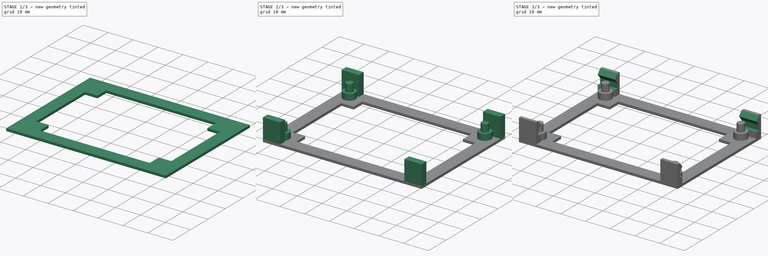
[diagram: build sequence overview — one tinted view per stage of 3, left to right]
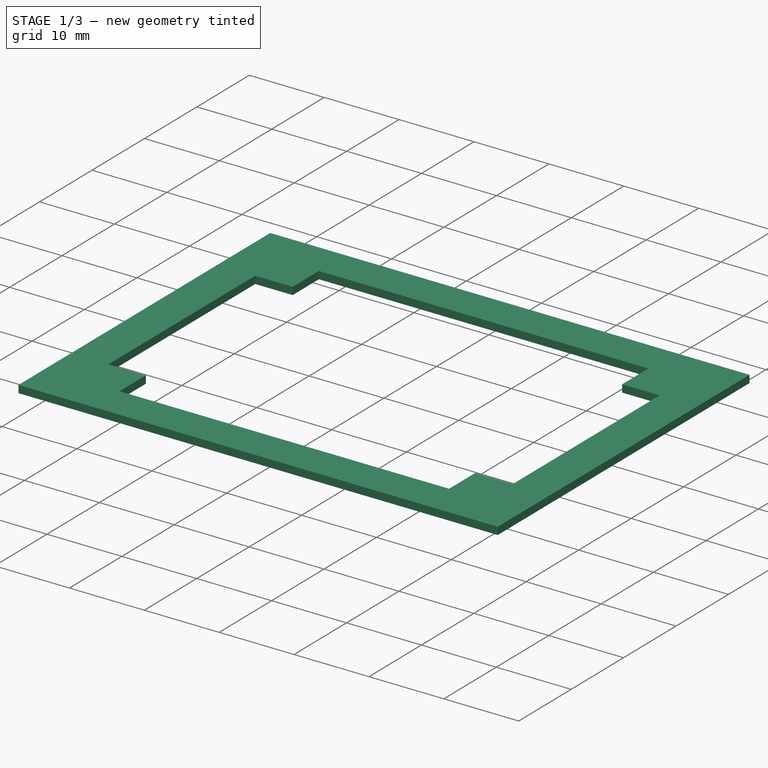
[diagram: stage 1 of 3 — iso view after this stage's code; geometry added in this stage tinted green]
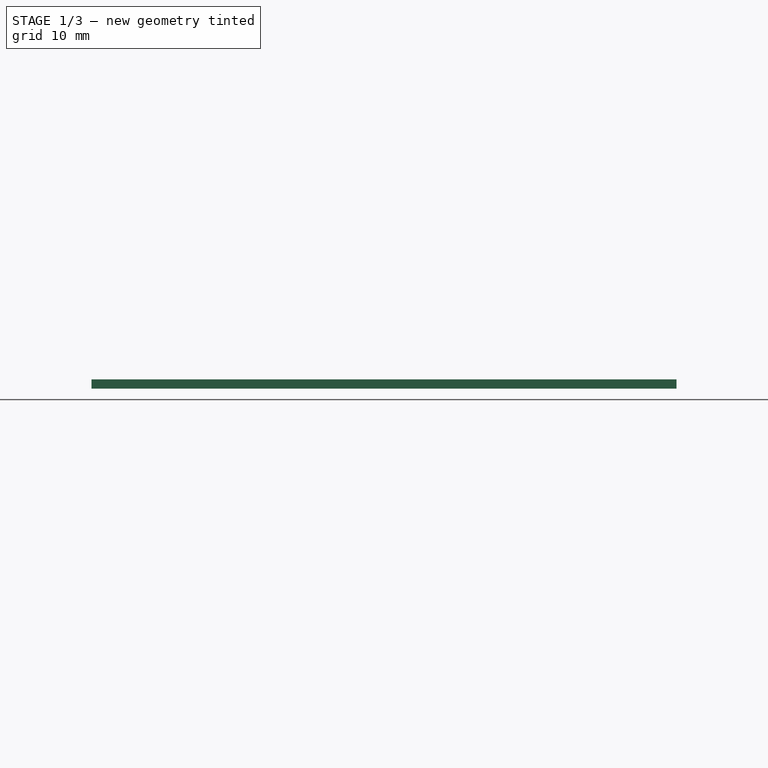
[diagram: stage 1 of 3 — front view after this stage's code; geometry added in this stage tinted green]
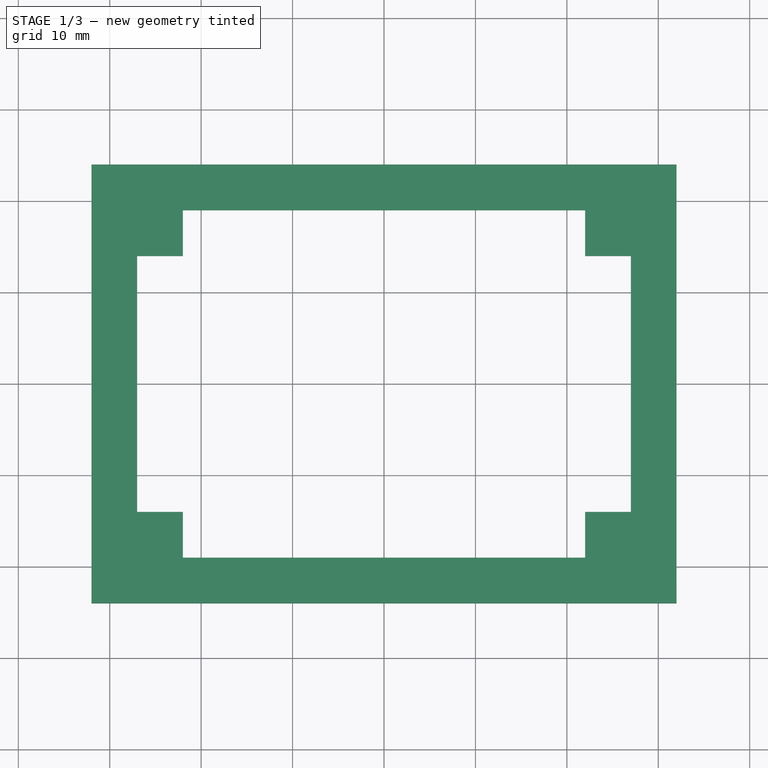
[diagram: stage 1 of 3 — top view after this stage's code; geometry added in this stage tinted green]
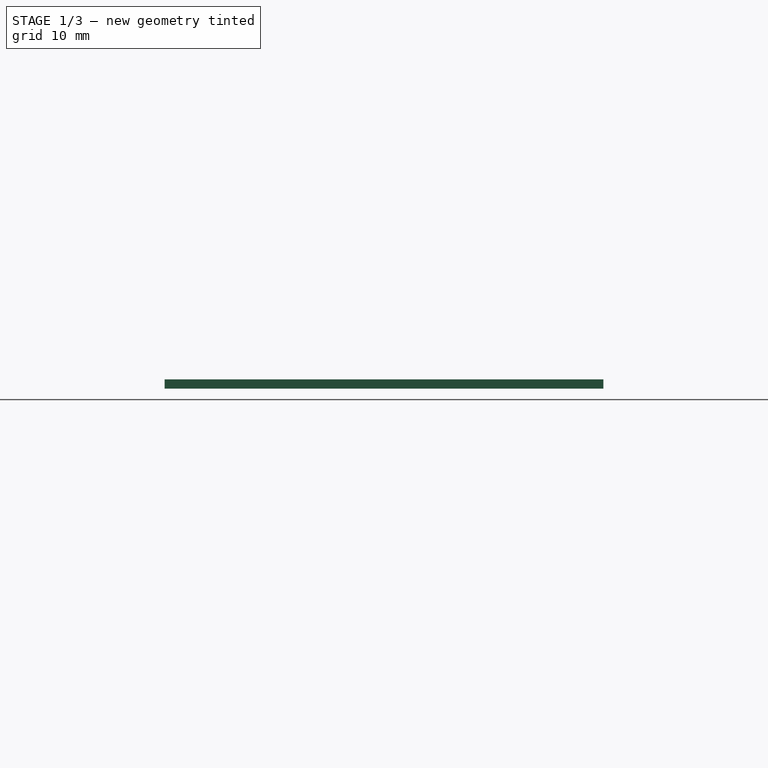
[diagram: stage 1 of 3 — right view after this stage's code; geometry added in this stage tinted green]
FCSTD DOCUMENT  (FreeCAD 0.15R4669 (Git))
Label: preamp_mount
License: CC-BY 3.0
LicenseURL: http://creativecommons.org/licenses/by/3.0/
objects: Sketcher::SketchObject×6, PartDesign::Pad×4, PartDesign::Pocket×2, PartDesign::Mirrored×1
note: 19 computed .brp shape members not serialized (recipe doc carries the construction recipe); baked Part::Feature solids carry a one-line shape summary decoded from their .brp

FEATURE [Sketcher::SketchObject] Sketch
  sketch-geometry (4):
    g0: LineSegment StartX=-32 StartY=24 StartZ=0 EndX=32 EndY=24 EndZ=0
    g1: LineSegment StartX=32 StartY=24 StartZ=0 EndX=32 EndY=-24 EndZ=0
    g2: LineSegment StartX=32 StartY=-24 StartZ=0 EndX=-32 EndY=-24 EndZ=0
    g3: LineSegment StartX=-32 StartY=-24 StartZ=0 EndX=-32 EndY=24 EndZ=0
  constraints (11):
    c: Coincident(g0,g1)
    c: Coincident(g1,g2)
    c: Coincident(g2,g3)
    c: Coincident(g3,g0)
    c: Horizontal(g0)
    c: Horizontal(g2)
    c: Vertical(g1)
    c: Vertical(g3)
    c: Symmetric(g1,g0,g-1)
    c: DistanceY(g0,g2) = -48
    c: DistanceX(g0,g0) = 64
FEATURE [PartDesign::Pad] Pad
  Length = 1
  Length2 = 0.3
  Sketch = -> Sketch
  Type = 0
FEATURE [Sketcher::SketchObject] Sketch001
  ExternalGeometry = -> [Pad]
  Placement = pos=(0,0,1) rot=(0,0,1;0rad)
  Support = -> Pad [Face6]
  sketch-geometry (12):
    g0: LineSegment StartX=-27 StartY=14 StartZ=0 EndX=-27 EndY=-14 EndZ=0
    g1: LineSegment StartX=-27 StartY=-14 StartZ=0 EndX=-22 EndY=-14 EndZ=0
    g2: LineSegment StartX=-22 StartY=-14 StartZ=0 EndX=-22 EndY=-19 EndZ=0
    g3: LineSegment StartX=-22 StartY=-19 StartZ=0 EndX=22 EndY=-19 EndZ=0
    g4: LineSegment StartX=22 StartY=-19 StartZ=0 EndX=22 EndY=-14 EndZ=0
    g5: LineSegment StartX=22 StartY=-14 StartZ=0 EndX=27 EndY=-14 EndZ=0
    g6: LineSegment StartX=27 StartY=-14 StartZ=0 EndX=27 EndY=14 EndZ=0
    g7: LineSegment StartX=27 StartY=14 StartZ=0 EndX=22 EndY=14 EndZ=0
    g8: LineSegment StartX=22 StartY=14 StartZ=0 EndX=22 EndY=19 EndZ=0
    g9: LineSegment StartX=22 StartY=19 StartZ=0 EndX=-22 EndY=19 EndZ=0
    g10: LineSegment StartX=-22 StartY=19 StartZ=0 EndX=-22 EndY=14 EndZ=0
    g11: LineSegment StartX=-22 StartY=14 StartZ=0 EndX=-27 EndY=14 EndZ=0
  constraints (34):
    c: Vertical(g0)
    c: Coincident(g0,g1)
    c: Horizontal(g1)
    c: Coincident(g1,g2)
    c: Vertical(g2)
    c: Coincident(g2,g3)
    c: Horizontal(g3)
    c: Coincident(g3,g4)
    c: Coincident(g4,g5)
    c: Horizontal(g5)
    c: Coincident(g5,g6)
    c: Vertical(g6)
    c: Coincident(g6,g7)
    c: Horizontal(g7)
    c: Coincident(g7,g8)
    c: Coincident(g8,g9)
    c: Horizontal(g9)
    c: Coincident(g9,g10)
    c: Coincident(g10,g11)
    c: Coincident(g11,g0)
    c: Vertical(g4)
    c: Horizontal(g11)
    c: Vertical(g10)
    c: Vertical(g8)
    c: DistanceX(g-3,g0) = 5
    c: DistanceY(g9,g-3) = 5
    c: DistanceY(g10,g9) = 5
    c: DistanceX(g10,g0) = -5
    c: Symmetric(g9,g3,g-1)
    c: Symmetric(g4,g10,g-1)
    c: Symmetric(g5,g0,g-1)
    c: DistanceY(g7,g-3) = 10
    c: DistanceX(g-3,g7) = -10
    c: Symmetric(g7,g1,g-1)
FEATURE [PartDesign::Pocket] Pocket
  Length = 5
  Sketch = -> Sketch001
  Type = 1
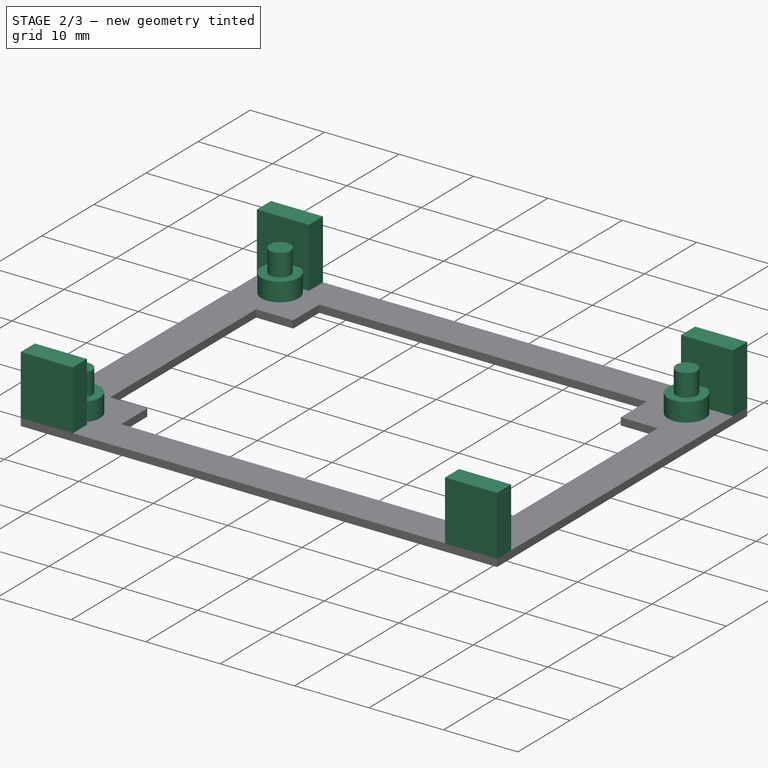
[diagram: stage 2 of 3 — iso view after this stage's code; geometry added in this stage tinted green]
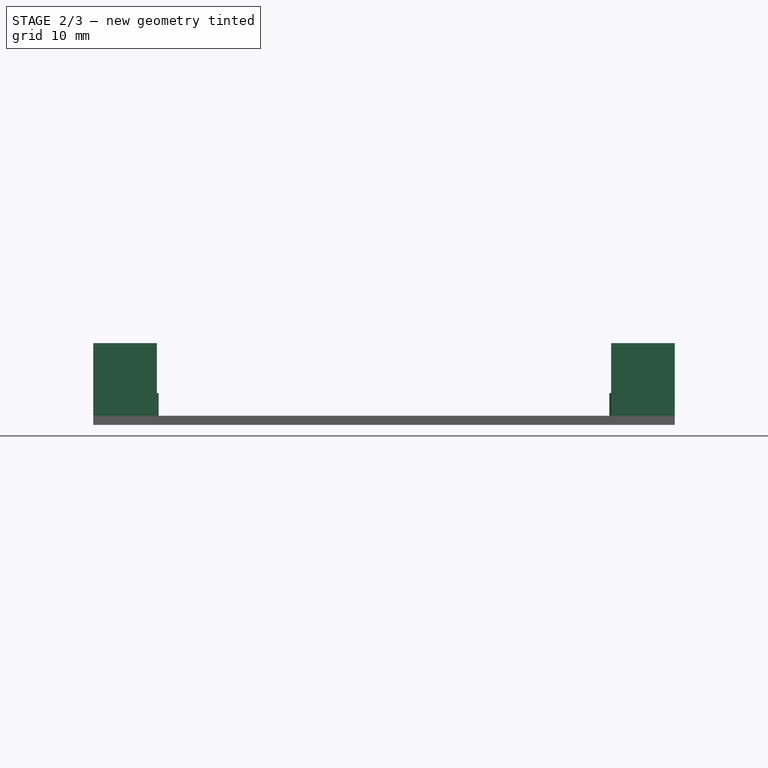
[diagram: stage 2 of 3 — front view after this stage's code; geometry added in this stage tinted green]
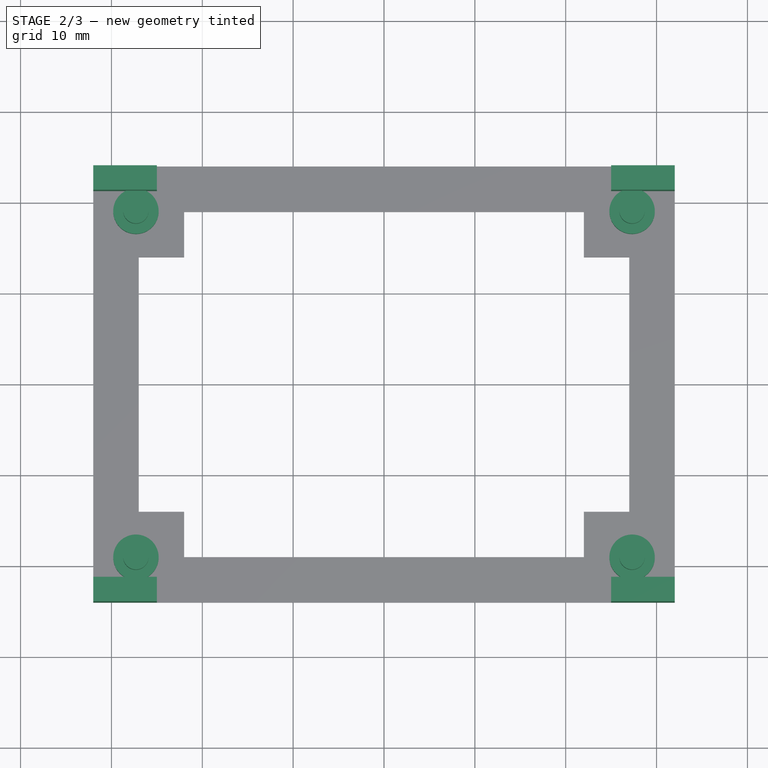
[diagram: stage 2 of 3 — top view after this stage's code; geometry added in this stage tinted green]
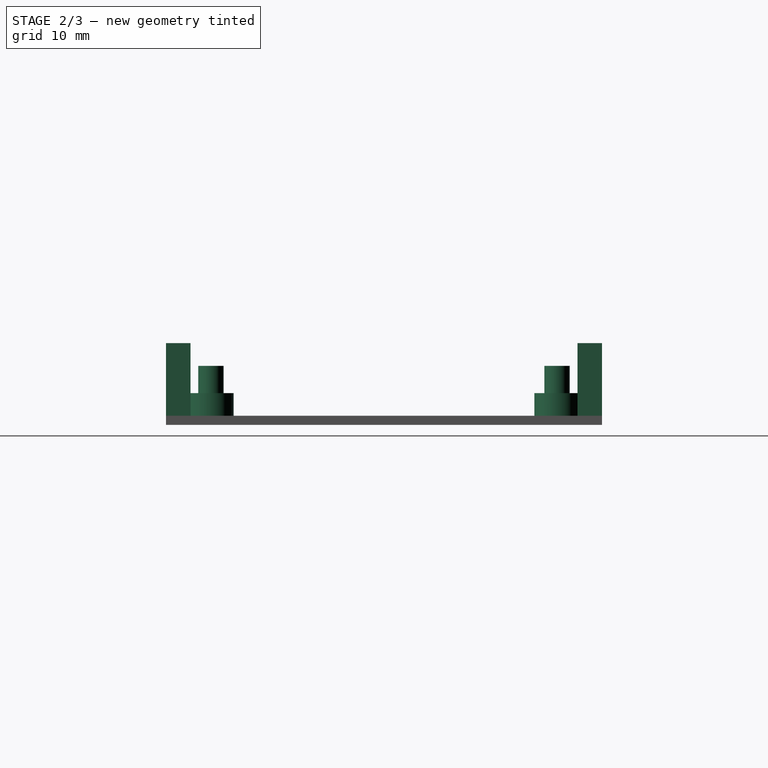
[diagram: stage 2 of 3 — right view after this stage's code; geometry added in this stage tinted green]
FEATURE [Sketcher::SketchObject] Sketch002
  Placement = pos=(0,0,1) rot=(0,0,1;0rad)
  Support = -> Pocket [Face5]
  sketch-geometry (4):
    g0: Circle CenterX=-27.305 CenterY=19.05 CenterZ=0 NormalX=0 NormalY=0 NormalZ=1 Radius=2.5
    g1: Circle CenterX=-27.305 CenterY=-19.05 CenterZ=0 NormalX=0 NormalY=0 NormalZ=1 Radius=2.5
    g2: Circle CenterX=27.305 CenterY=19.05 CenterZ=0 NormalX=0 NormalY=0 NormalZ=1 Radius=2.5
    g3: Circle CenterX=27.305 CenterY=-19.05 CenterZ=0 NormalX=0 NormalY=0 NormalZ=1 Radius=2.5
  constraints (10):
    c: Radius(g0) = 2.5
    c: Radius(g1) = 2.5
    c: Radius(g3) = 2.5
    c: Radius(g2) = 2.5
    c: Symmetric(g0,g3,g-1)
    c: Symmetric(g1,g2,g-1)
    c: DistanceX(g-1,g1) = -27.305
    c: DistanceY(g-1,g1) = -19.05
    c: DistanceY(g1,g0) = 38.1
    c: DistanceX(g1,g3) = 54.61
FEATURE [PartDesign::Pad] Pad001
  Length = 2.5
  Length2 = 0
  Sketch = -> Sketch002
  Type = 0
FEATURE [Sketcher::SketchObject] Sketch003
  ExternalGeometry = -> [Pad001]
  Placement = pos=(0,0,3.5) rot=(0,0,1;0rad)
  Support = -> Pad001 [Face23]
  sketch-geometry (4):
    g0: Circle CenterX=27.305 CenterY=19.05 CenterZ=0 NormalX=0 NormalY=0 NormalZ=1 Radius=1.4
    g1: Circle CenterX=-27.305 CenterY=-19.05 CenterZ=0 NormalX=0 NormalY=0 NormalZ=1 Radius=1.4
    g2: Circle CenterX=27.305 CenterY=-19.05 CenterZ=0 NormalX=0 NormalY=0 NormalZ=1 Radius=1.4
    g3: Circle CenterX=-27.305 CenterY=19.05 CenterZ=0 NormalX=0 NormalY=0 NormalZ=1 Radius=1.4
  constraints (8):
    c: Coincident(g0,g-3)
    c: Coincident(g1,g-4)
    c: Coincident(g2,g-6)
    c: Coincident(g3,g-5)
    c: Radius(g0) = 1.4
    c: Radius(g2) = 1.4
    c: Radius(g3) = 1.4
    c: Radius(g1) = 1.4
FEATURE [PartDesign::Pad] Pad002
  Length = 3
  Length2 = 0
  Sketch = -> Sketch003
  Type = 0
FEATURE [Sketcher::SketchObject] Sketch004
  ExternalGeometry = -> [Pad002]
  Placement = pos=(0,0,1) rot=(0,0,1;0rad)
  Support = -> Pad002 [Face5]
  sketch-geometry (16):
    g0: LineSegment StartX=-32 StartY=-21.3 StartZ=0 EndX=-25 EndY=-21.3 EndZ=0
    g1: LineSegment StartX=-25 StartY=-21.3 StartZ=0 EndX=-25 EndY=-24 EndZ=0
    g2: LineSegment StartX=-25 StartY=-24 StartZ=0 EndX=-32 EndY=-24 EndZ=0
    g3: LineSegment StartX=-32 StartY=-24 StartZ=0 EndX=-32 EndY=-21.3 EndZ=0
    g4: LineSegment StartX=32 StartY=-24 StartZ=0 EndX=25 EndY=-24 EndZ=0
    g5: LineSegment StartX=25 StartY=-24 StartZ=0 EndX=25 EndY=-21.3 EndZ=0
    g6: LineSegment StartX=25 StartY=-21.3 StartZ=0 EndX=32 EndY=-21.3 EndZ=0
    g7: LineSegment StartX=32 StartY=-21.3 StartZ=0 EndX=32 EndY=-24 EndZ=0
    g8: LineSegment StartX=32 StartY=24 StartZ=0 EndX=25 EndY=24 EndZ=0
    g9: LineSegment StartX=25 StartY=24 StartZ=0 EndX=25 EndY=21.3 EndZ=0
    g10: LineSegment StartX=25 StartY=21.3 StartZ=0 EndX=32 EndY=21.3 EndZ=0
    g11: LineSegment StartX=32 StartY=21.3 StartZ=0 EndX=32 EndY=24 EndZ=0
    g12: LineSegment StartX=-32 StartY=24 StartZ=0 EndX=-25 EndY=24 EndZ=0
    g13: LineSegment StartX=-25 StartY=24 StartZ=0 EndX=-25 EndY=21.3 EndZ=0
    g14: LineSegment StartX=-25 StartY=21.3 StartZ=0 EndX=-32 EndY=21.3 EndZ=0
    g15: LineSegment StartX=-32 StartY=21.3 StartZ=0 EndX=-32 EndY=24 EndZ=0
  constraints (43):
    c: Coincident(g0,g1)
    c: Coincident(g1,g2)
    c: Coincident(g2,g3)
    c: Coincident(g3,g0)
    c: Horizontal(g0)
    c: Horizontal(g2)
    c: Vertical(g1)
    c: Vertical(g3)
    c: Coincident(g2,g-4)
    c: DistanceX(g1,g2) = -7
    c: DistanceY(g0,g2) = -2.7
    c: Coincident(g4,g5)
    c: Coincident(g5,g6)
    c: Coincident(g6,g7)
    c: Coincident(g7,g4)
    c: Horizontal(g4)
    c: Horizontal(g6)
    c: Vertical(g5)
    c: Vertical(g7)
    c: Coincident(g4,g-4)
    c: DistanceY(g5,g0) = 0
    c: Coincident(g8,g9)
    c: Coincident(g9,g10)
    c: Coincident(g10,g11)
    c: Coincident(g11,g8)
    c: Horizontal(g8)
    c: Horizontal(g10)
    c: Vertical(g9)
    c: Vertical(g11)
    c: Coincident(g8,g-5)
    c: Symmetric(g9,g0,g-1)
    c: DistanceX(g4,g9) = 0
    c: Coincident(g12,g13)
    c: Coincident(g13,g14)
    c: Coincident(g14,g15)
    c: Coincident(g15,g12)
    c: Horizontal(g12)
    c: Horizontal(g14)
    c: Vertical(g13)
    c: Vertical(g15)
    c: Coincident(g12,g-5)
    c: DistanceY(g13,g9) = 0
    c: DistanceX(g12,g0) = 0
FEATURE [PartDesign::Pad] Pad003
  Length = 8
  Length2 = 100
  Sketch = -> Sketch004
  Type = 0
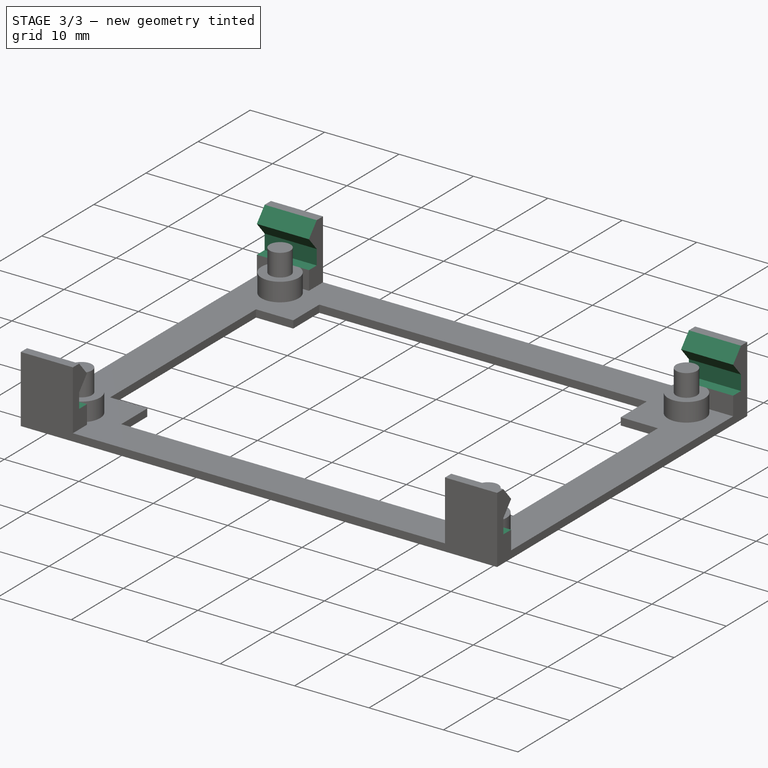
[diagram: stage 3 of 3 — iso view after this stage's code; geometry added in this stage tinted green]
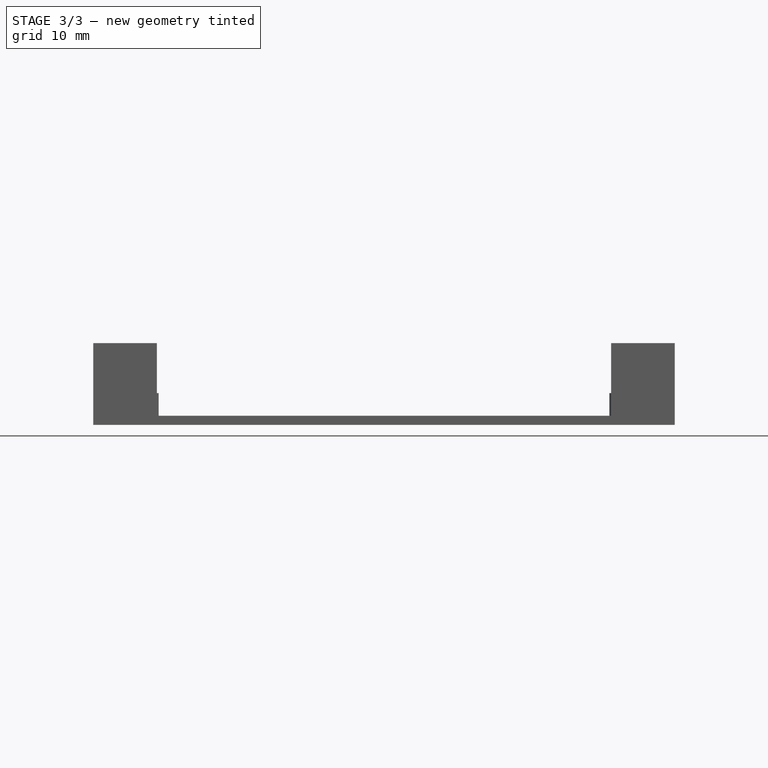
[diagram: stage 3 of 3 — front view after this stage's code; geometry added in this stage tinted green]
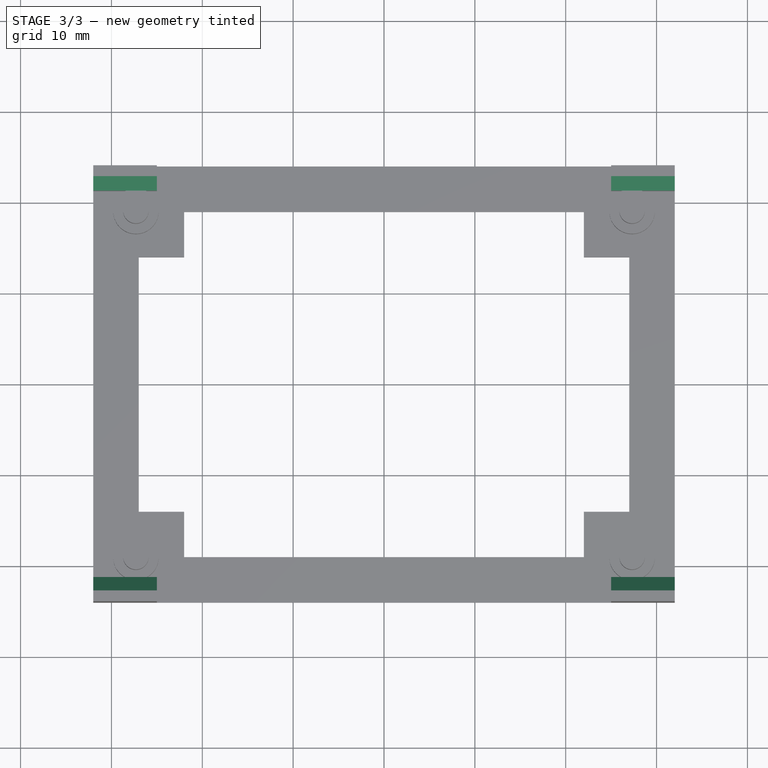
[diagram: stage 3 of 3 — top view after this stage's code; geometry added in this stage tinted green]
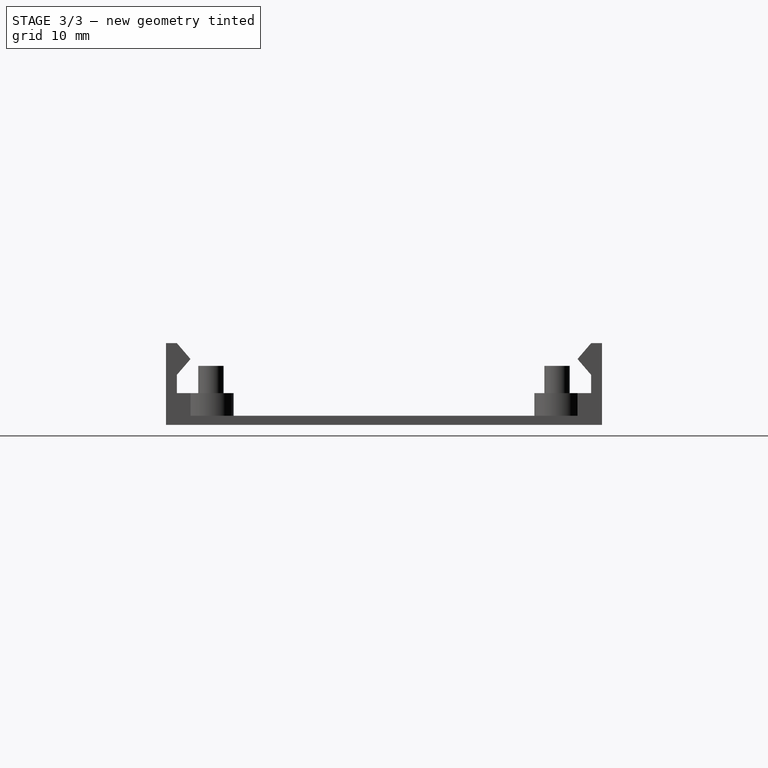
[diagram: stage 3 of 3 — right view after this stage's code; geometry added in this stage tinted green]
FEATURE [Sketcher::SketchObject] Sketch005
  ExternalGeometry = -> [Pad003]
  Placement = pos=(32,0,0) rot=(0.57735,0.57735,0.57735;2.0944rad)
  Support = -> Pad003 [Face41]
  sketch-geometry (7):
    g0: LineSegment StartX=-22.8 StartY=9 StartZ=0 EndX=-21.3 EndY=7.25 EndZ=0
    g1: LineSegment StartX=-21.3 StartY=7.25 StartZ=0 EndX=-22.8 EndY=5.5 EndZ=0
    g2: LineSegment StartX=-22.8 StartY=5.5 StartZ=0 EndX=-22.8 EndY=3.5 EndZ=0
    g3: LineSegment StartX=-22.8 StartY=3.5 StartZ=0 EndX=-21.3 EndY=3.5 EndZ=0
    g4: LineSegment StartX=-22.8 StartY=9 StartZ=0 EndX=-22.8 EndY=10 EndZ=0
    g5: LineSegment StartX=-22.8 StartY=10 StartZ=0 EndX=-21.2 EndY=10 EndZ=0
    g6: LineSegment StartX=-21.2 StartY=10 StartZ=0 EndX=-21.3 EndY=3.5 EndZ=0
  constraints (21):
    c: Coincident(g0,g1)
    c: Coincident(g1,g2)
    c: Coincident(g2,g3)
    c: Horizontal(g3)
    c: DistanceY(g2,g-5) = -2.5
    c: PointOnObject(g3,g-5)
    c: Vertical(g2)
    c: PointOnObject(g0,g-5)
    c: DistanceX(g2,g-5) = 1.5
    c: DistanceX(g1,g0) = 0
    c: PointOnObject(g0,g-4)
    c: DistanceY(g2,g1) = 2
    c: Equal(g1,g0)
    c: Coincident(g0,g4)
    c: Vertical(g4)
    c: Coincident(g4,g5)
    c: Horizontal(g5)
    c: Coincident(g5,g6)
    c: Coincident(g6,g3)
    c: DistanceX(g5,g-5) = -0.1
    c: DistanceY(g0,g4) = 1
FEATURE [PartDesign::Pocket] Pocket001
  Length = 5
  Sketch = -> Sketch005
  Type = 1
FEATURE [PartDesign::Mirrored] Mirrored
  MirrorPlane = -> Sketch005 [V_Axis]
  Originals = -> [Pocket001]
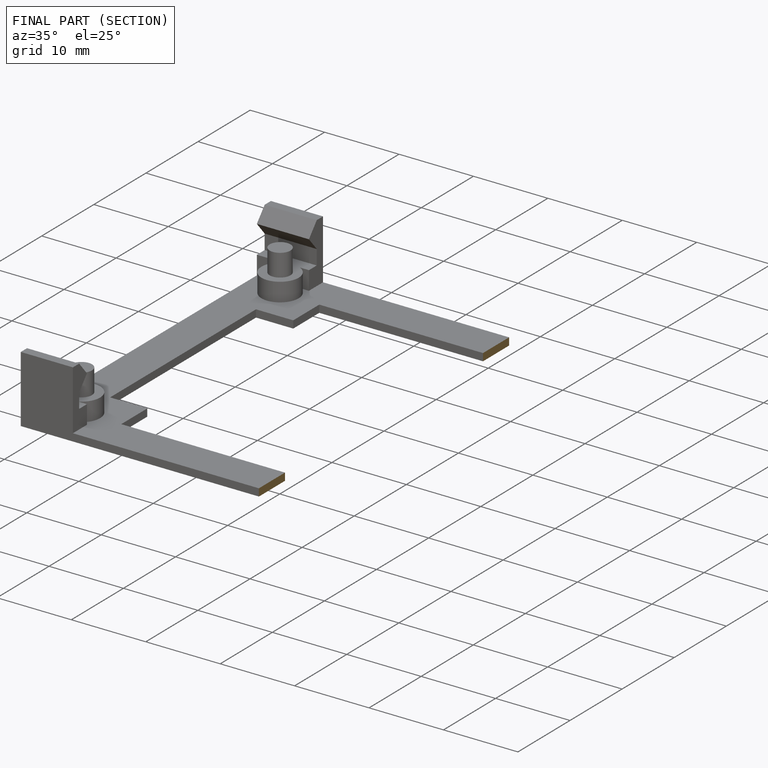
[diagram: finished part — half-section view (interior)]
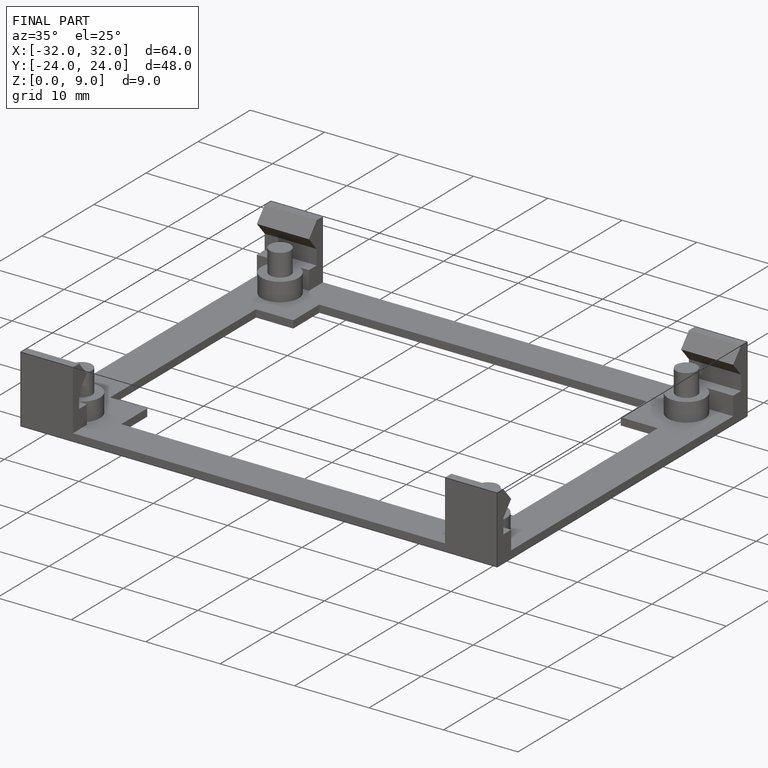
[diagram: finished part — iso view with bounding-box wireframe]
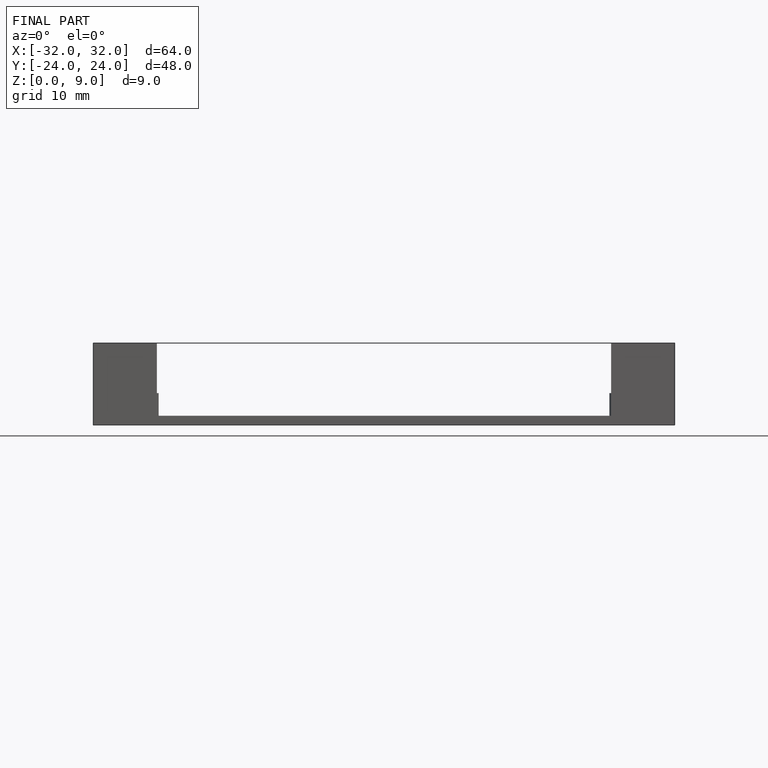
[diagram: finished part — front view with bounding-box wireframe]
